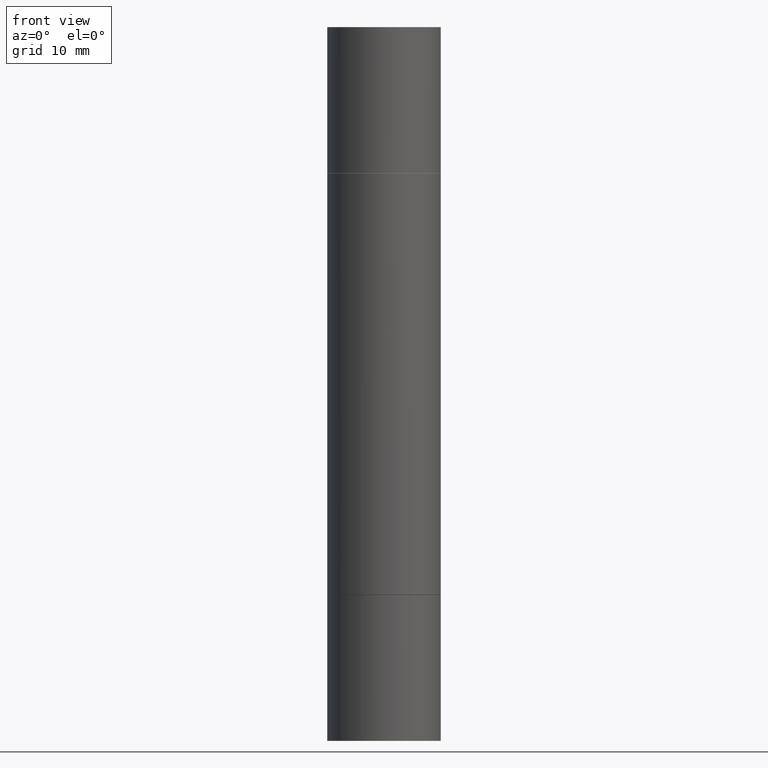
[diagram: clean part render]
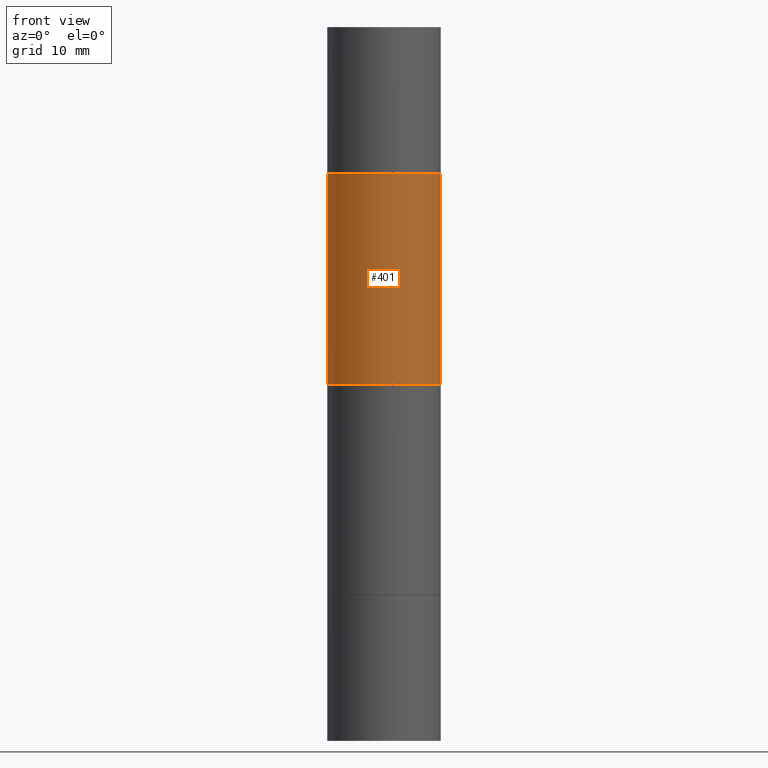
[diagram: same view with one face highlighted and labeled with its STEP entity id]
A machine part, front view. The second image highlights one B-rep face of the part: STEP entity #401.
In plain terms, the highlighted cylindrical surface (partial cylindrical patch) has radius 5.5562 mm, axis along (-0, -0, -1).
Its self-contained STEP definition (entity closure, byte-faithful):
#5 = FACE_OUTER_BOUND ( 'NONE', #644, .T. ) ;
#28 = CARTESIAN_POINT ( 'NONE',  ( 0.2187499999999999445, -3.492082912473170057E-15, -0.5629999999999997229 ) ) ;
#38 = ORIENTED_EDGE ( 'NONE', *, *, #551, .F. ) ;
#46 = CYLINDRICAL_SURFACE ( 'NONE', #311, 0.2187499999999998612 ) ;
#52 = DIRECTION ( 'NONE',  ( 0.000000000000000000, 1.000000000000000000, -3.746534391310991923E-15 ) ) ;
#61 = DIRECTION ( 'NONE',  ( -2.445468806185136877E-29, -3.492890411551753071E-15, -1.000000000000000000 ) ) ;
#76 = CARTESIAN_POINT ( 'NONE',  ( -0.2187499999999998612, -1.881939396806789345E-15, -1.374999999999999778 ) ) ;
#91 = AXIS2_PLACEMENT_3D ( 'NONE', #266, #166, #258 ) ;
#99 = VERTEX_POINT ( 'NONE', #28 ) ;
#134 = LINE ( 'NONE', #289, #235 ) ;
#154 = DIRECTION ( 'NONE',  ( -2.445468806185136597E-29, -3.492890411551752677E-15, -1.000000000000000000 ) ) ;
#161 = DIRECTION ( 'NONE',  ( 1.000000000000000000, -6.982962677686267499E-15, 0.000000000000000000 ) ) ;
#166 = DIRECTION ( 'NONE',  ( 2.445468806185136597E-29, 3.492890411551752677E-15, 1.000000000000000000 ) ) ;
#182 = CIRCLE ( 'NONE', #91, 0.2187499999999999445 ) ;
#235 = VECTOR ( 'NONE', #282, 39.37007874015748143 ) ;
#248 = EDGE_CURVE ( 'NONE', #580, #99, #182, .T. ) ;
#258 = DIRECTION ( 'NONE',  ( 1.000000000000000000, -6.982962677686266711E-15, 0.000000000000000000 ) ) ;
#266 = CARTESIAN_POINT ( 'NONE',  ( 5.348240279126892383E-29, -1.964559826729300003E-15, -0.5629999999999997229 ) ) ;
#282 = DIRECTION ( 'NONE',  ( -2.445468806185136877E-29, -3.492890411551753071E-15, -1.000000000000000000 ) ) ;
#289 = CARTESIAN_POINT ( 'NONE',  ( -0.2187499999999998612, -8.102777219780461591E-15, -2.749999999999999556 ) ) ;
#311 = AXIS2_PLACEMENT_3D ( 'NONE', #419, #154, #161 ) ;
#319 = CARTESIAN_POINT ( 'NONE',  ( 3.362519608504561700E-29, -4.800786840909324141E-15, -1.374999999999999778 ) ) ;
#329 = CARTESIAN_POINT ( 'NONE',  ( 0.2187499999999998612, -4.910196419563181534E-15, -1.374999999999999778 ) ) ;
#335 = VERTEX_POINT ( 'NONE', #329 ) ;
#350 = VECTOR ( 'NONE', #61, 39.37007874015748143 ) ;
#378 = DIRECTION ( 'NONE',  ( -0.000000000000000000, -3.492185875197449130E-15, -1.000000000000000000 ) ) ;
#388 = CARTESIAN_POINT ( 'NONE',  ( -0.2187499999999999445, -4.638258897167772766E-16, -0.5629999999999997229 ) ) ;
#401 = ADVANCED_FACE ( 'NONE', ( #5 ), #46, .T. ) ;
#419 = CARTESIAN_POINT ( 'NONE',  ( 0.000000000000000000, -9.603511156792982543E-15, -2.749999999999999556 ) ) ;
#424 = EDGE_CURVE ( 'NONE', #335, #626, #573, .T. ) ;
#541 = CARTESIAN_POINT ( 'NONE',  ( 0.2187499999999998612, -1.113103424253685260E-14, -2.749999999999999556 ) ) ;
#551 = EDGE_CURVE ( 'NONE', #99, #335, #571, .T. ) ;
#571 = LINE ( 'NONE', #541, #350 ) ;
#573 = CIRCLE ( 'NONE', #616, 0.2187499999999998612 ) ;
#580 = VERTEX_POINT ( 'NONE', #388 ) ;
#603 = ORIENTED_EDGE ( 'NONE', *, *, #424, .F. ) ;
#616 = AXIS2_PLACEMENT_3D ( 'NONE', #319, #378, #52 ) ;
#626 = VERTEX_POINT ( 'NONE', #76 ) ;
#630 = ORIENTED_EDGE ( 'NONE', *, *, #248, .F. ) ;
#644 = EDGE_LOOP ( 'NONE', ( #630, #675, #603, #38 ) ) ;
#666 = EDGE_CURVE ( 'NONE', #580, #626, #134, .T. ) ;
#675 = ORIENTED_EDGE ( 'NONE', *, *, #666, .T. ) ;